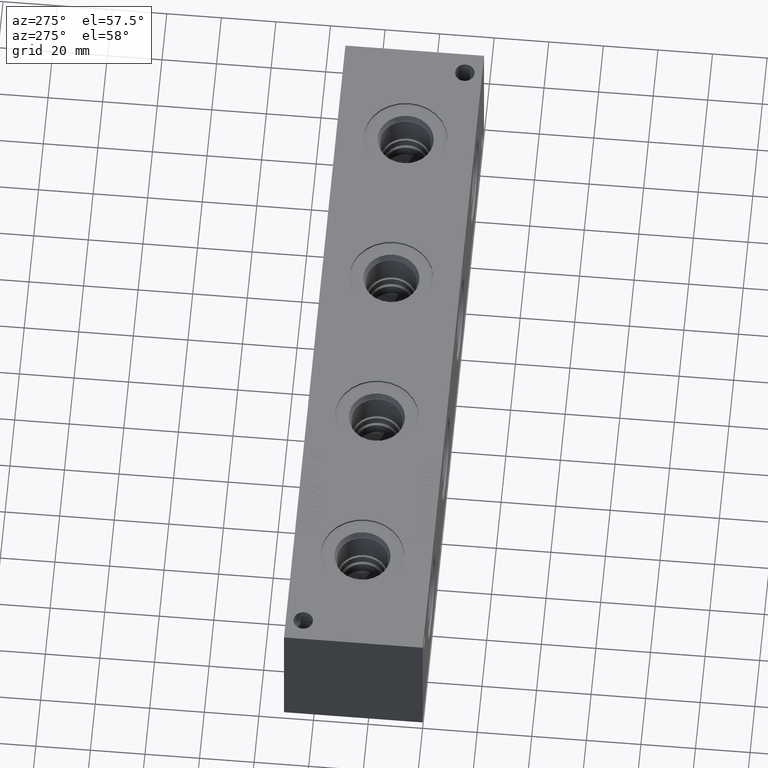
[diagram: clean part render]
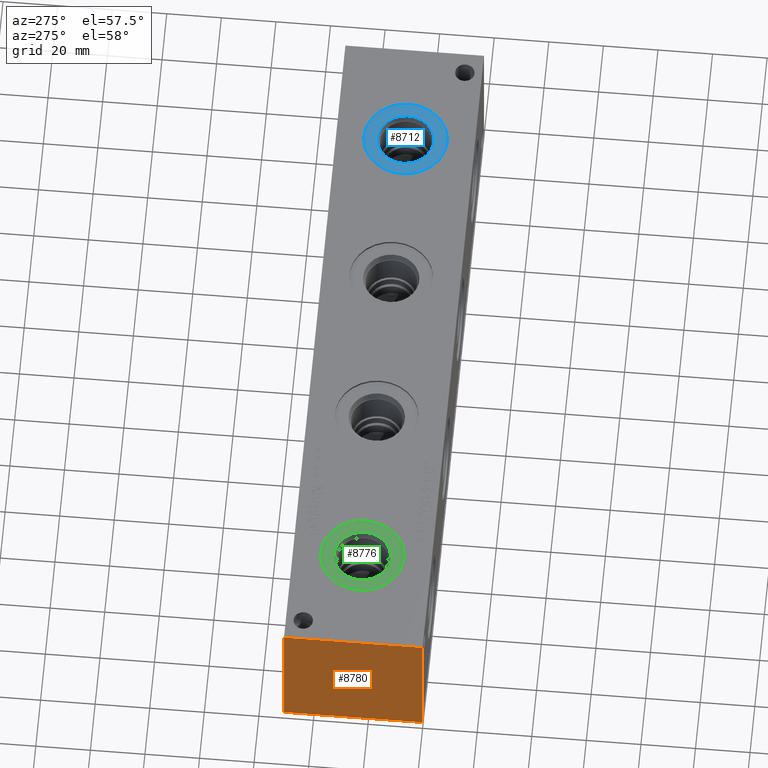
[diagram: same view with three faces highlighted in distinct colors, each labeled with its STEP entity id]
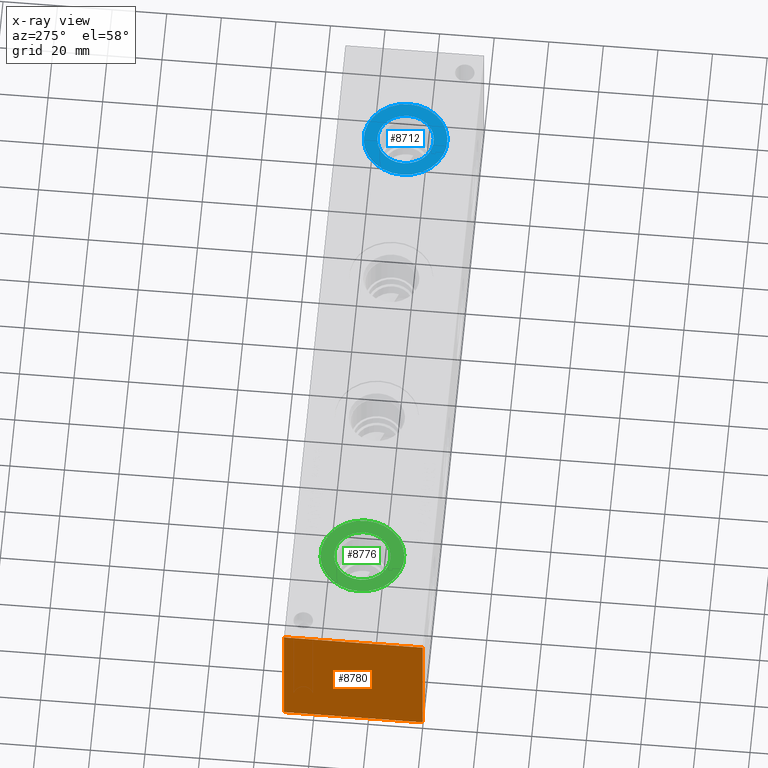
[diagram: x-ray of the same camera — body ghosted, the three highlighted faces saturated]
A machine part, auxiliary view with three faces highlighted in distinct colors.
The next image is the same camera in x-ray (body ghosted, the three faces saturated) — at least one of them is partly hidden behind the body in this view.
Their STEP definitions:

[orange] entity #8780 — the highlighted planar face has unit normal (-1, 0, 0).
#723=PLANE('',#9437);
#1185=FACE_OUTER_BOUND('',#1705,.T.);
#1705=EDGE_LOOP('',(#7886,#7887,#7888,#7889));
#1989=LINE('',#13481,#2719);
#2447=LINE('',#15360,#3177);
#2448=LINE('',#15361,#3178);
#2449=LINE('',#15362,#3179);
#2719=VECTOR('',#9847,10.);
#3177=VECTOR('',#11443,10.);
#3178=VECTOR('',#11444,10.);
#3179=VECTOR('',#11445,10.);
#3703=VERTEX_POINT('',#13474);
#3706=VERTEX_POINT('',#13479);
#4227=VERTEX_POINT('',#15358);
#4228=VERTEX_POINT('',#15359);
#4669=EDGE_CURVE('',#3706,#3703,#1989,.T.);
#5457=EDGE_CURVE('',#4227,#4228,#2447,.T.);
#5458=EDGE_CURVE('',#4228,#3703,#2448,.T.);
#5459=EDGE_CURVE('',#4227,#3706,#2449,.T.);
#7886=ORIENTED_EDGE('',*,*,#5457,.T.);
#7887=ORIENTED_EDGE('',*,*,#5458,.T.);
#7888=ORIENTED_EDGE('',*,*,#4669,.F.);
#7889=ORIENTED_EDGE('',*,*,#5459,.F.);
#8780=ADVANCED_FACE('',(#1185),#723,.T.);
#9437=AXIS2_PLACEMENT_3D('',#15357,#11441,#11442);
#9847=DIRECTION('',(0.,-1.,0.));
#11441=DIRECTION('center_axis',(-1.,0.,0.));
#11442=DIRECTION('ref_axis',(0.,-1.,0.));
#11443=DIRECTION('',(0.,-1.,0.));
#11444=DIRECTION('',(0.,0.,1.));
#11445=DIRECTION('',(0.,0.,1.));
#13474=CARTESIAN_POINT('',(0.,0.,50.8));
#13479=CARTESIAN_POINT('',(0.,50.8,50.8));
#13481=CARTESIAN_POINT('',(0.,50.8,50.8));
#15357=CARTESIAN_POINT('Origin',(0.,50.8,0.));
#15358=CARTESIAN_POINT('',(0.,50.8,0.));
#15359=CARTESIAN_POINT('',(0.,0.,0.));
#15360=CARTESIAN_POINT('',(0.,50.8,0.));
#15361=CARTESIAN_POINT('',(0.,0.,0.));
#15362=CARTESIAN_POINT('',(0.,50.8,0.));

[blue] entity #8712 — the highlighted planar face has unit normal (0, 0, -1).
#329=CIRCLE('',#9272,15.3162);
#330=CIRCLE('',#9273,15.3162);
#331=CIRCLE('',#9275,10.2997);
#332=CIRCLE('',#9276,10.2997);
#463=FACE_BOUND('',#1625,.T.);
#710=PLANE('',#9274);
#1117=FACE_OUTER_BOUND('',#1624,.T.);
#1624=EDGE_LOOP('',(#7553,#7554));
#1625=EDGE_LOOP('',(#7555,#7556));
#4141=VERTEX_POINT('',#15042);
#4142=VERTEX_POINT('',#15044);
#4143=VERTEX_POINT('',#15048);
#4144=VERTEX_POINT('',#15049);
#5315=EDGE_CURVE('',#4141,#4142,#329,.T.);
#5316=EDGE_CURVE('',#4142,#4141,#330,.T.);
#5317=EDGE_CURVE('',#4143,#4144,#331,.T.);
#5318=EDGE_CURVE('',#4144,#4143,#332,.T.);
#7553=ORIENTED_EDGE('',*,*,#5316,.F.);
#7554=ORIENTED_EDGE('',*,*,#5315,.F.);
#7555=ORIENTED_EDGE('',*,*,#5317,.T.);
#7556=ORIENTED_EDGE('',*,*,#5318,.T.);
#8712=ADVANCED_FACE('',(#1117,#463),#710,.F.);
#9272=AXIS2_PLACEMENT_3D('',#15045,#11072,#11073);
#9273=AXIS2_PLACEMENT_3D('',#15046,#11074,#11075);
#9274=AXIS2_PLACEMENT_3D('',#15047,#11076,#11077);
#9275=AXIS2_PLACEMENT_3D('',#15050,#11078,#11079);
#9276=AXIS2_PLACEMENT_3D('',#15051,#11080,#11081);
#11072=DIRECTION('center_axis',(0.,0.,-1.));
#11073=DIRECTION('ref_axis',(1.,0.,0.));
#11074=DIRECTION('center_axis',(0.,0.,-1.));
#11075=DIRECTION('ref_axis',(1.,0.,0.));
#11076=DIRECTION('center_axis',(0.,0.,-1.));
#11077=DIRECTION('ref_axis',(-1.,0.,0.));
#11078=DIRECTION('center_axis',(0.,0.,-1.));
#11079=DIRECTION('ref_axis',(1.,0.,0.));
#11080=DIRECTION('center_axis',(0.,0.,-1.));
#11081=DIRECTION('ref_axis',(1.,0.,0.));
#15042=CARTESIAN_POINT('',(203.7588,25.4,50.0126));
#15044=CARTESIAN_POINT('',(234.3912,25.4,50.0126));
#15045=CARTESIAN_POINT('Origin',(219.075,25.4,50.0126));
#15046=CARTESIAN_POINT('Origin',(219.075,25.4,50.0126));
#15047=CARTESIAN_POINT('Origin',(229.3747,25.4,50.0126));
#15048=CARTESIAN_POINT('',(229.3747,25.4,50.0126));
#15049=CARTESIAN_POINT('',(208.7753,25.4,50.0126));
#15050=CARTESIAN_POINT('Origin',(219.075,25.4,50.0126));
#15051=CARTESIAN_POINT('Origin',(219.075,25.4,50.0126));

[green] entity #8776 — the highlighted planar face has unit normal (0, 0, -1).
#410=CIRCLE('',#9425,15.3162);
#411=CIRCLE('',#9426,15.3162);
#412=CIRCLE('',#9428,10.2997);
#413=CIRCLE('',#9429,10.2997);
#475=FACE_BOUND('',#1701,.T.);
#722=PLANE('',#9427);
#1181=FACE_OUTER_BOUND('',#1700,.T.);
#1700=EDGE_LOOP('',(#7865,#7866));
#1701=EDGE_LOOP('',(#7867,#7868));
#4219=VERTEX_POINT('',#15333);
#4220=VERTEX_POINT('',#15335);
#4221=VERTEX_POINT('',#15339);
#4222=VERTEX_POINT('',#15340);
#5446=EDGE_CURVE('',#4219,#4220,#410,.T.);
#5447=EDGE_CURVE('',#4220,#4219,#411,.T.);
#5448=EDGE_CURVE('',#4221,#4222,#412,.T.);
#5449=EDGE_CURVE('',#4222,#4221,#413,.T.);
#7865=ORIENTED_EDGE('',*,*,#5447,.F.);
#7866=ORIENTED_EDGE('',*,*,#5446,.F.);
#7867=ORIENTED_EDGE('',*,*,#5448,.T.);
#7868=ORIENTED_EDGE('',*,*,#5449,.T.);
#8776=ADVANCED_FACE('',(#1181,#475),#722,.F.);
#9425=AXIS2_PLACEMENT_3D('',#15336,#11414,#11415);
#9426=AXIS2_PLACEMENT_3D('',#15337,#11416,#11417);
#9427=AXIS2_PLACEMENT_3D('',#15338,#11418,#11419);
#9428=AXIS2_PLACEMENT_3D('',#15341,#11420,#11421);
#9429=AXIS2_PLACEMENT_3D('',#15342,#11422,#11423);
#11414=DIRECTION('center_axis',(0.,0.,-1.));
#11415=DIRECTION('ref_axis',(1.,0.,0.));
#11416=DIRECTION('center_axis',(0.,0.,-1.));
#11417=DIRECTION('ref_axis',(1.,0.,0.));
#11418=DIRECTION('center_axis',(0.,0.,-1.));
#11419=DIRECTION('ref_axis',(-1.,0.,0.));
#11420=DIRECTION('center_axis',(0.,0.,-1.));
#11421=DIRECTION('ref_axis',(1.,0.,0.));
#11422=DIRECTION('center_axis',(0.,0.,-1.));
#11423=DIRECTION('ref_axis',(1.,0.,0.));
#15333=CARTESIAN_POINT('',(22.7838,25.4,50.0126));
#15335=CARTESIAN_POINT('',(53.4162,25.4,50.0126));
#15336=CARTESIAN_POINT('Origin',(38.1,25.4,50.0126));
#15337=CARTESIAN_POINT('Origin',(38.1,25.4,50.0126));
#15338=CARTESIAN_POINT('Origin',(48.3997,25.4,50.0126));
#15339=CARTESIAN_POINT('',(48.3997,25.4,50.0126));
#15340=CARTESIAN_POINT('',(27.8003,25.4,50.0126));
#15341=CARTESIAN_POINT('Origin',(38.1,25.4,50.0126));
#15342=CARTESIAN_POINT('Origin',(38.1,25.4,50.0126));